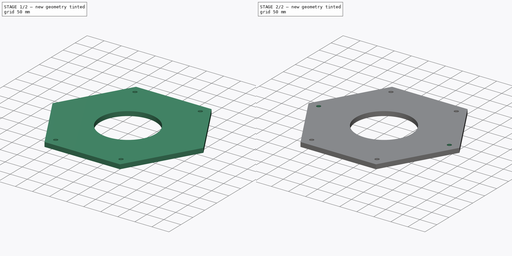
[diagram: build sequence overview — one tinted view per stage of 2, left to right]
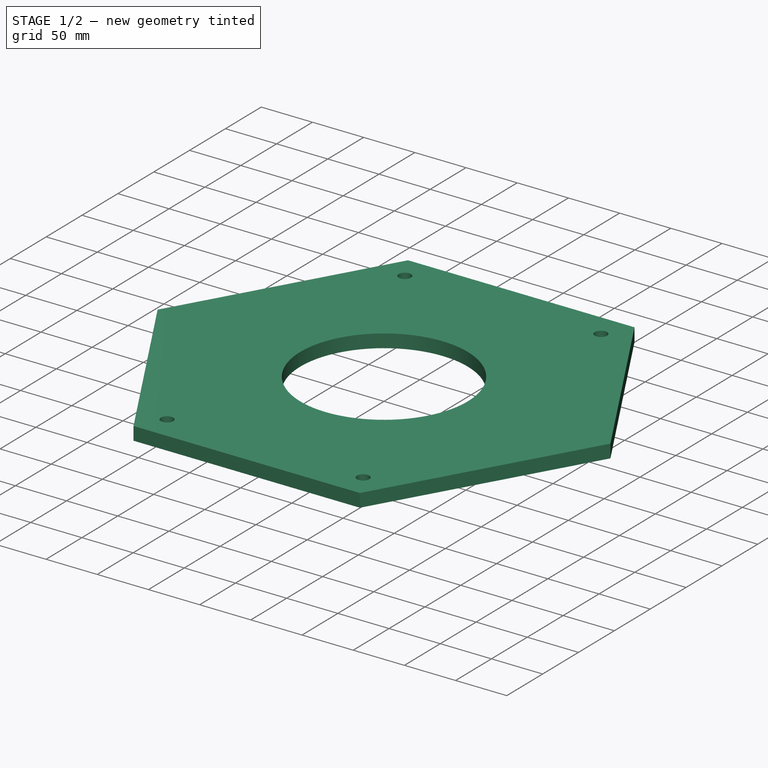
[diagram: stage 1 of 2 — iso view after this stage's code; geometry added in this stage tinted green]
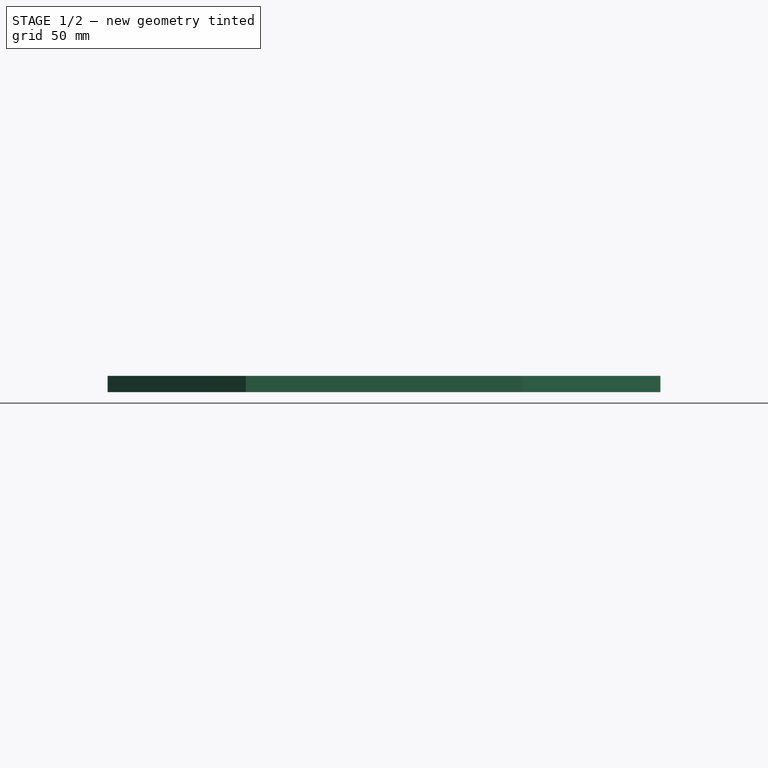
[diagram: stage 1 of 2 — front view after this stage's code; geometry added in this stage tinted green]
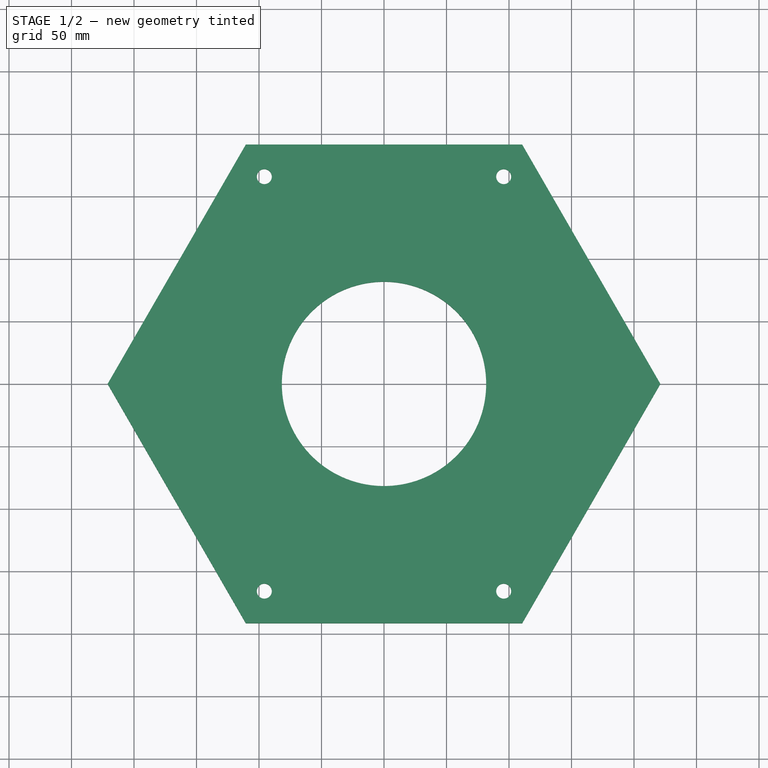
[diagram: stage 1 of 2 — top view after this stage's code; geometry added in this stage tinted green]
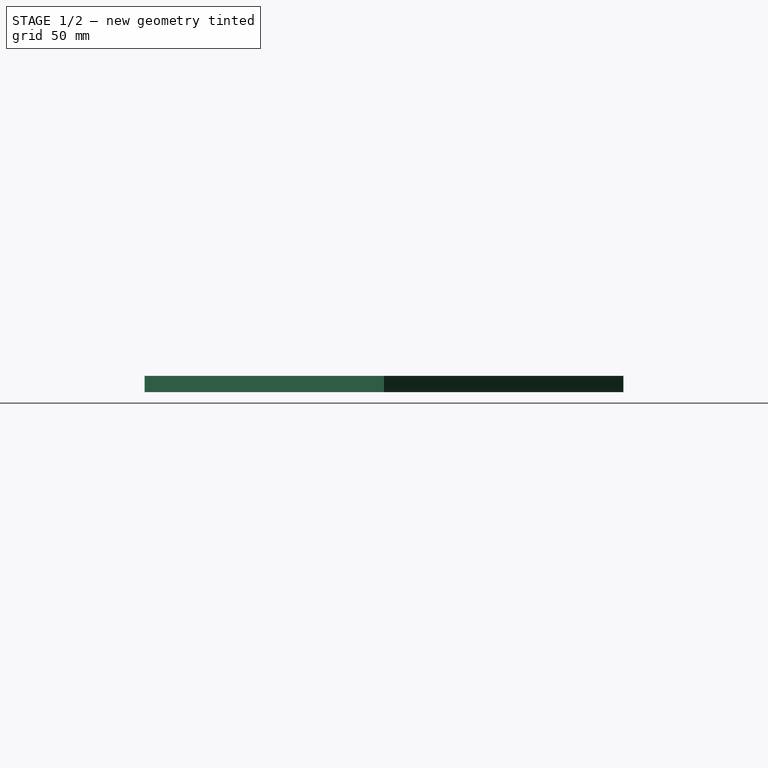
[diagram: stage 1 of 2 — right view after this stage's code; geometry added in this stage tinted green]
FCSTD DOCUMENT  (FreeCAD 0.20R29177 (Git))
Label: Stator_ResinCast_Hexagonal
License: All rights reserved
LicenseURL: http://en.wikipedia.org/wiki/All_rights_reserved
objects: Sketcher::SketchObject×3, PartDesign::Pocket×2, PartDesign::Pad×1, Spreadsheet::Sheet×1, PartDesign::Body×1
note: 10 computed .brp shape members not serialized (recipe doc carries the construction recipe); baked Part::Feature solids carry a one-line shape summary decoded from their .brp
EXTERNAL_REF file=../../Master_of_Puppets.FCStd obj=Alternator
EXTERNAL_REF file=../../Master_of_Puppets.FCStd obj=Spreadsheet

FEATURE [Sketcher::SketchObject] Sketch
  FullyConstrained = true
  MapMode = 5
  Support = -> [XY_Plane]
  expr: Constraints[1] = Spreadsheet.StatorInnerHoleRadius
  expr: Constraints[20] = Spreadsheet.StatorOuterCircle
  sketch-geometry (8):
    g0: Circle CenterX=0 CenterY=0 CenterZ=0 NormalX=0 NormalY=0 NormalZ=1 AngleXU=0 Radius=81.7481
    g1: LineSegment StartX=110.563 StartY=191.5 StartZ=0 EndX=-110.563 EndY=191.5 EndZ=0
    g2: LineSegment StartX=-110.563 StartY=191.5 StartZ=0 EndX=-221.125 EndY=0 EndZ=0
    g3: LineSegment StartX=-221.125 StartY=0 StartZ=0 EndX=-110.563 EndY=-191.5 EndZ=0
    g4: LineSegment StartX=-110.563 StartY=-191.5 StartZ=0 EndX=110.563 EndY=-191.5 EndZ=0
    g5: LineSegment StartX=110.563 StartY=-191.5 StartZ=0 EndX=221.125 EndY=-2.84e-14 EndZ=0
    g6: LineSegment StartX=221.125 StartY=-2.84e-14 StartZ=0 EndX=110.563 EndY=191.5 EndZ=0
    g7: Circle CenterX=0 CenterY=0 CenterZ=0 NormalX=0 NormalY=0 NormalZ=1 AngleXU=0 Radius=221.125
  constraints (18):
    c: Coincident(g0,g-1)
    c: Radius(g0) = 81.7481
    c: Coincident(g1,g2)
    c: Coincident(g2,g3)
    c: Coincident(g3,g4)
    c: Coincident(g4,g5)
    c: Coincident(g5,g6)
    c: Coincident(g6,g1)
    c: Equal(g1, g2-g6) x5
    c: PointOnObject(g1,g7)
    c: PointOnObject(g2,g7)
    c: PointOnObject(g3,g7)
    c: PointOnObject(g4,g7)
    c: PointOnObject(g5,g7)
    c: PointOnObject(g6,g7)
    c: Coincident(g7,g-1)
    c: Radius(g7) = 221.125
    c: Horizontal(g1)
FEATURE [PartDesign::Pad] Pad
  AllowMultiFace = false
  Direction = (0,0,1)
  Length = 13
  Length2 = 100
  Profile = -> Sketch
  Type = 0
  expr: Length = Spreadsheet.StatorThickness
FEATURE [Spreadsheet::Sheet] Spreadsheet
  cells = A1=Inputs; A2=RotorRadius; B2(RotorDiskRadius)==Master_of_Puppets#Spreadsheet.RotorDiskRadius; A3=MagnetLength; B3(MagnetLength)==Master_of_Puppets#Spreadsheet.MagnetLength; A4=CoilLegWidth; B4(CoilLegWidth)==Master_of_Puppets#Spreadsheet.CoilLegWidth; A5=HolesRadius; B5(HolesRadius)==Master_of_Puppets#Alternator.HolesRadius; A6=StatorThickness; B6(StatorThickness)==Master_of_Puppets#Spreadsheet.StatorThickness; A7=HexagonalStatorOuterCircumradius; B7(StatorOuterCircle)==Master_of_Puppets#Alternator.HexagonalStatorOuterCircumradius; A8=StatorHolesCircumradius; B8(StatorHolesCircumradius)==Master_of_Puppets#Alternator.StatorHolesCircumradius; A9=StatorInnerHoleRadius; B9(StatorInnerHoleRadius)==Master_of_Puppets#Alternator.StatorInnerHoleRadius
FEATURE [Sketcher::SketchObject] Sketch001
  ExternalGeometry = -> [Pad]
  FullyConstrained = true
  MapMode = 5
  Placement = pos=(0,0,13) rot=(0,0,1;0rad)
  Support = -> [Pad]
  expr: Constraints[0] = Spreadsheet.StatorHolesCircumradius
  expr: Constraints[13] = Spreadsheet.HolesRadius
  expr: Constraints[14] = Spreadsheet.HolesRadius
  expr: Constraints[15] = Spreadsheet.HolesRadius
  expr: Constraints[1] = Spreadsheet.HolesRadius
  sketch-geometry (8):
    g0: Circle CenterX=95.75 CenterY=165.844 CenterZ=0 NormalX=0 NormalY=0 NormalZ=1 AngleXU=0 Radius=6
    g1: Circle CenterX=0 CenterY=0 CenterZ=0 NormalX=0 NormalY=0 NormalZ=1 AngleXU=0 Radius=191.5
    g2: Circle CenterX=-95.75 CenterY=165.844 CenterZ=0 NormalX=0 NormalY=0 NormalZ=1 AngleXU=0 Radius=6
    g3: Circle CenterX=-95.75 CenterY=-165.844 CenterZ=0 NormalX=0 NormalY=0 NormalZ=1 AngleXU=0 Radius=6
    g4: LineSegment StartX=-95.75 StartY=165.844 StartZ=0 EndX=-95.75 EndY=-165.844 EndZ=0
    g5: Circle CenterX=95.75 CenterY=-165.844 CenterZ=0 NormalX=0 NormalY=0 NormalZ=1 AngleXU=0 Radius=6
    g6: LineSegment StartX=95.75 StartY=-165.844 StartZ=0 EndX=95.75 EndY=165.844 EndZ=0
    g7: LineSegment StartX=0 StartY=0 StartZ=0 EndX=110.563 EndY=191.5 EndZ=0
  constraints (19):
    c: Radius(g1) = 191.5
    c: Radius(g0) = 6
    c: PointOnObject(g0,g1)
    c: Coincident(g1,g-1)
    c: Symmetric(g2,g0,g-2)
    c: PointOnObject(g3,g1)
    c: Coincident(g4,g2)
    c: Coincident(g4,g3)
    c: Vertical(g4)
    c: PointOnObject(g5,g1)
    c: Coincident(g6,g5)
    c: Coincident(g6,g0)
    c: Vertical(g6)
    c: Radius(g5) = 6
    c: Radius(g3) = 6
    c: Radius(g2) = 6
    c: Coincident(g7,g-1)
    c: Coincident(g7,g-4)
    c: PointOnObject(g0,g7)
FEATURE [PartDesign::Pocket] Pocket
  AllowMultiFace = false
  BaseFeature = -> Pad
  Direction = (0,0,-1)
  Length = 5
  Length2 = 100
  Profile = -> Sketch001
  Type = 1
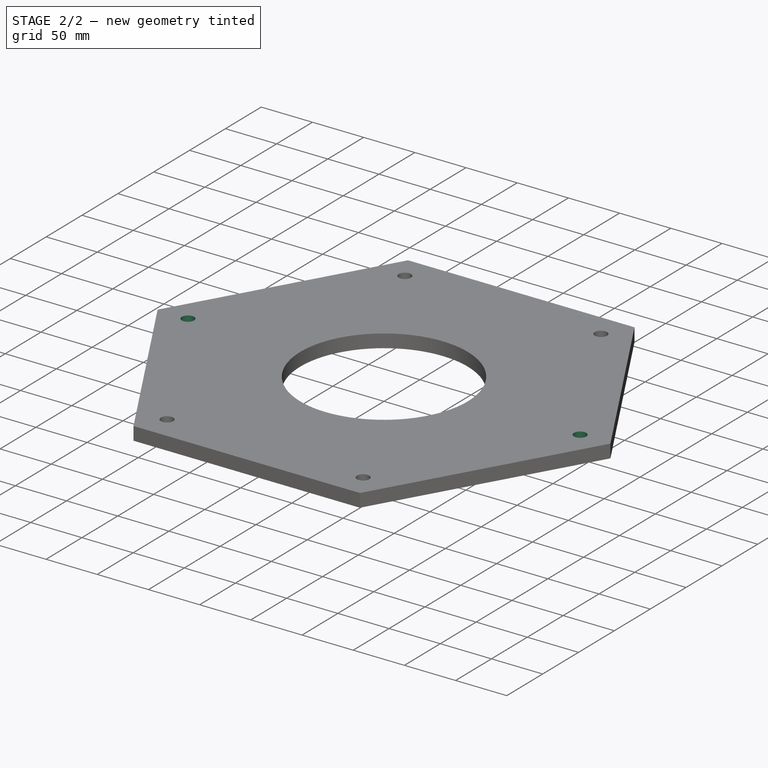
[diagram: stage 2 of 2 — iso view after this stage's code; geometry added in this stage tinted green]
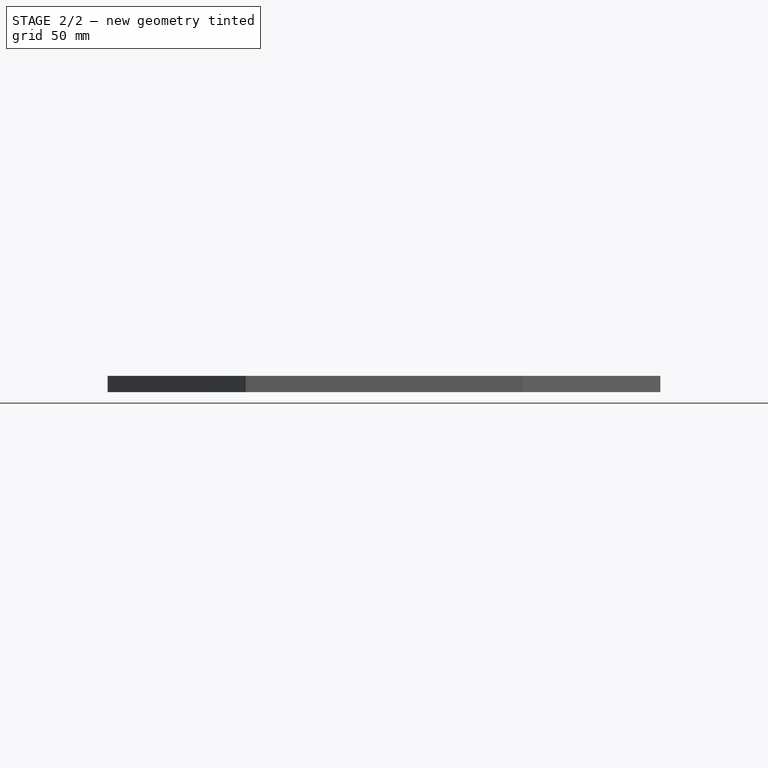
[diagram: stage 2 of 2 — front view after this stage's code; geometry added in this stage tinted green]
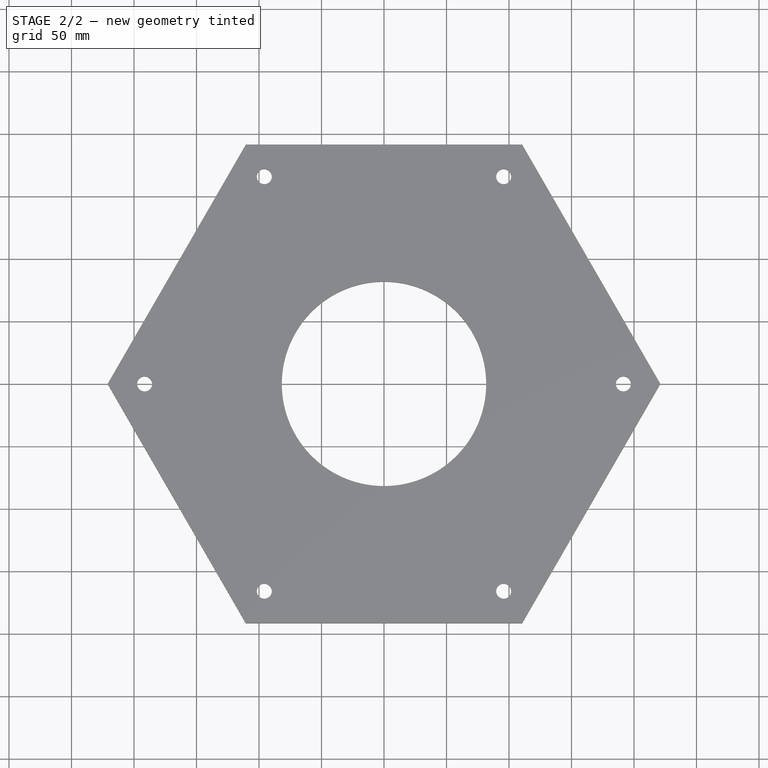
[diagram: stage 2 of 2 — top view after this stage's code; geometry added in this stage tinted green]
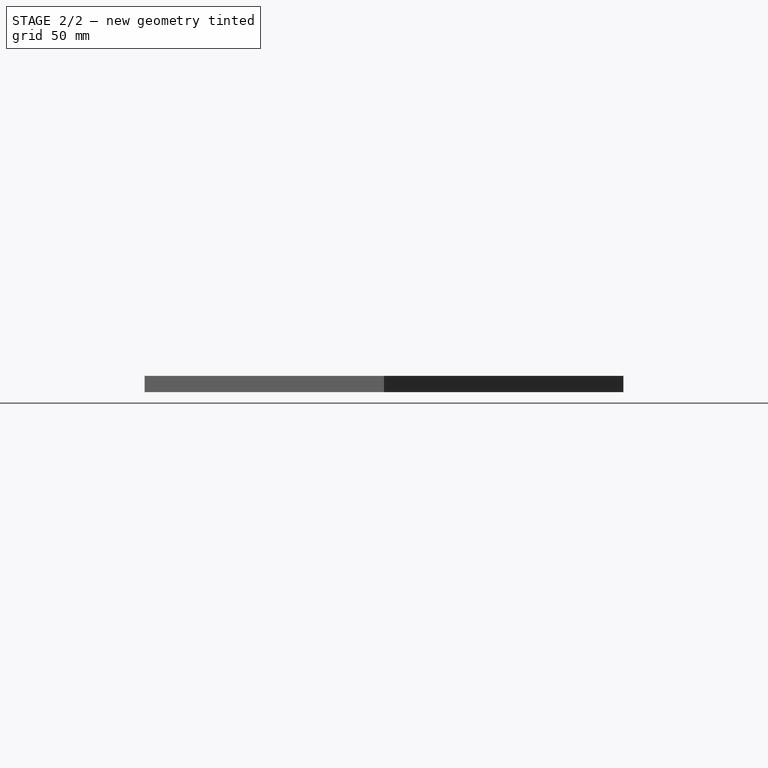
[diagram: stage 2 of 2 — right view after this stage's code; geometry added in this stage tinted green]
FEATURE [Sketcher::SketchObject] Sketch002
  ExternalGeometry = -> [Pocket]
  FullyConstrained = false
  MapMode = 5
  Placement = pos=(0,0,13) rot=(0,0,1;0rad)
  Support = -> [Pocket]
  expr: Constraints[2] = Spreadsheet.HolesRadius
  expr: Constraints[6] = Spreadsheet.HolesRadius
  expr: Constraints[7] = Spreadsheet.StatorHolesCircumradius
  sketch-geometry (4):
    g0: Circle CenterX=0 CenterY=0 CenterZ=0 NormalX=0 NormalY=0 NormalZ=1 AngleXU=0 Radius=191.5
    g1: Circle CenterX=-191.5 CenterY=0 CenterZ=0 NormalX=0 NormalY=0 NormalZ=1 AngleXU=0 Radius=6
    g2: Circle CenterX=191.5 CenterY=0 CenterZ=0 NormalX=0 NormalY=0 NormalZ=1 AngleXU=0 Radius=6
    g3: LineSegment StartX=-453.104 StartY=0 StartZ=0 EndX=453.104 EndY=0 EndZ=0
  constraints (8):
    c: Coincident(g0,g-1)
    c: PointOnObject(g1,g0)
    c: Radius(g1) = 6
    c: PointOnObject(g2,g0)
    c: PointOnObject(g2,g3)
    c: PointOnObject(g1,g3)
    c: Radius(g2) = 6
    c: Radius(g0) = 191.5
FEATURE [PartDesign::Pocket] Pocket001
  AllowMultiFace = false
  BaseFeature = -> Pocket
  Direction = (0,0,-1)
  Length = 5
  Length2 = 100
  Profile = -> Sketch002
  Type = 1
FEATURE [PartDesign::Body] Body  label="Stator_ResinCast"
  Group = -> [Sketch,Pad,Sketch001,Pocket,Sketch002,Pocket001]
  Origin = -> Origin
  Tip = -> Pocket001
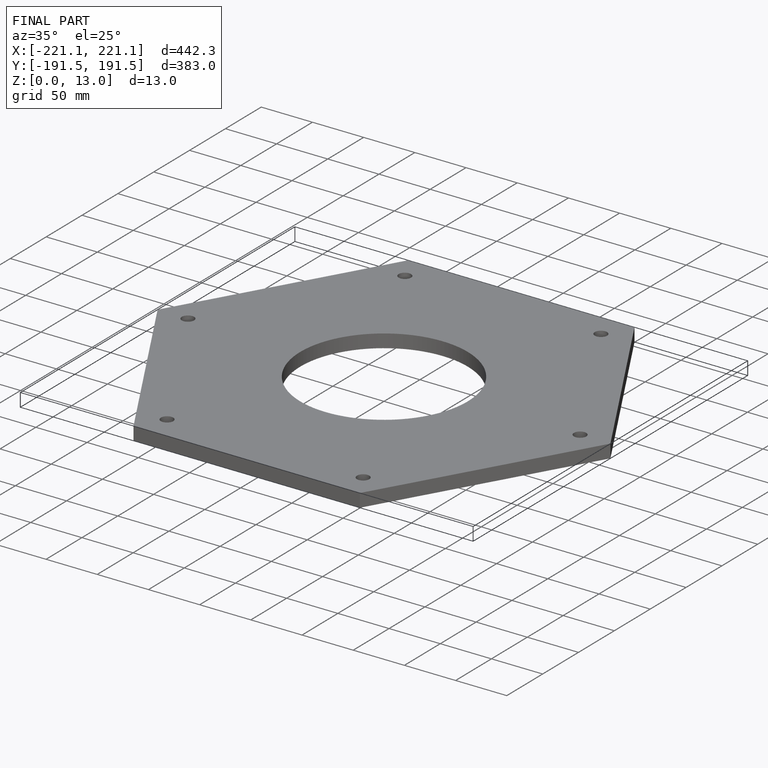
[diagram: finished part — iso view with bounding-box wireframe]
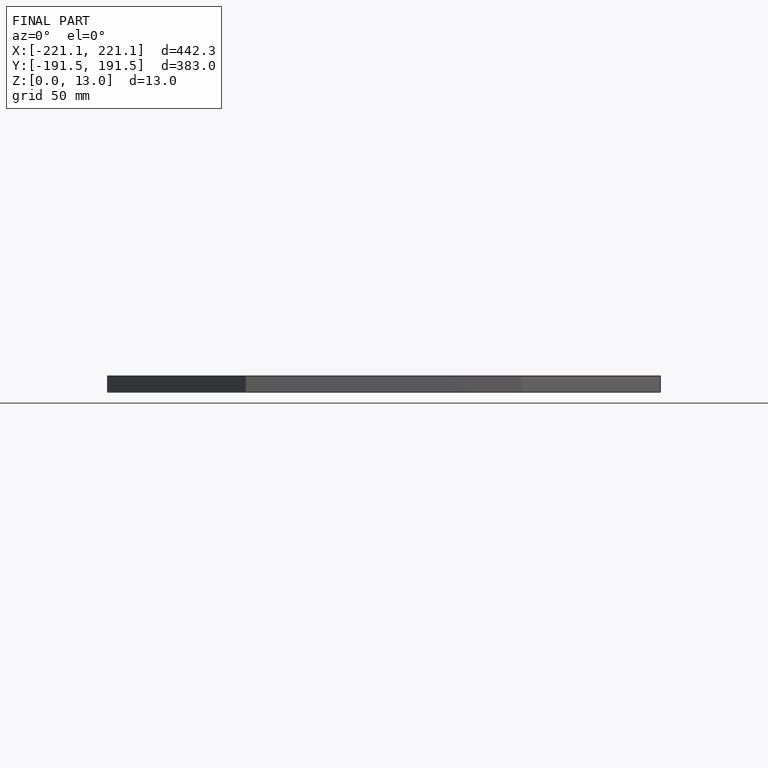
[diagram: finished part — front view with bounding-box wireframe]
